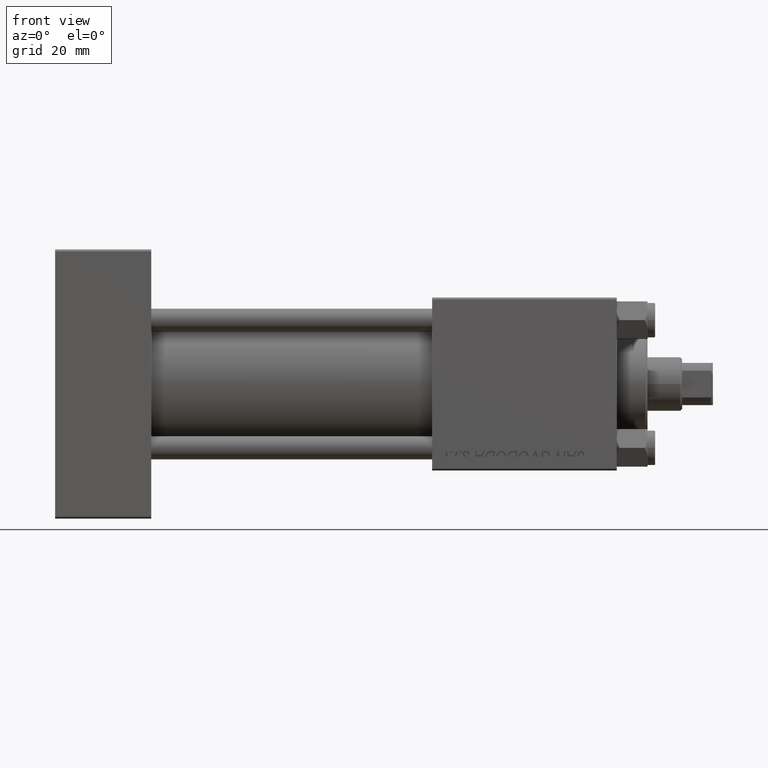
[diagram: clean part render]
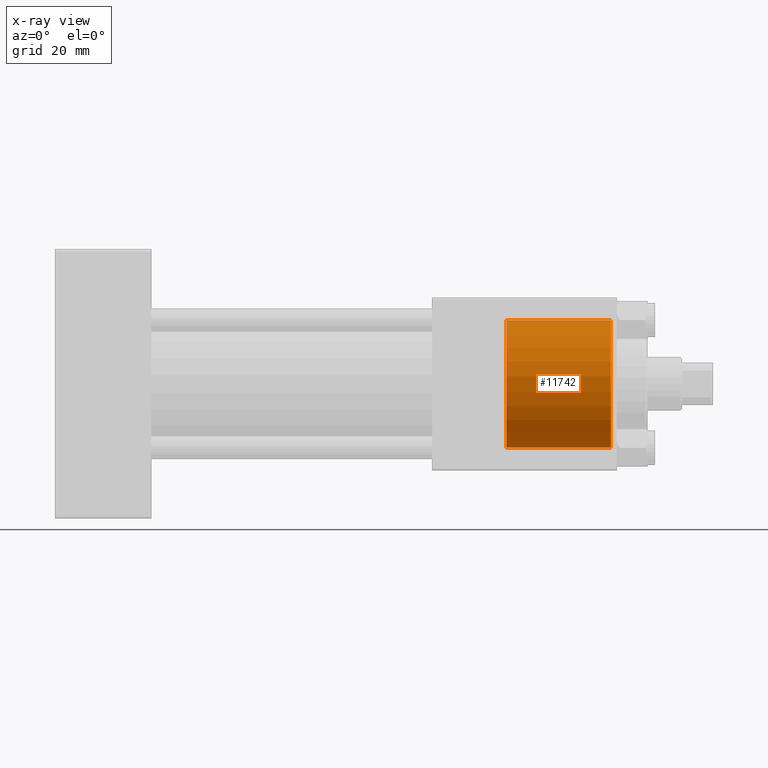
[diagram: x-ray — body ghosted, one internal face saturated and labeled with its STEP entity id]
A machine part, front view, then the same camera in x-ray: the body is ghosted and one INTERNAL B-rep face — a face not visible from any outside direction — is saturated and labeled: STEP entity #11742.
In plain terms, the highlighted cylindrical surface (partial cylindrical patch) has radius 16.5 mm, axis along (1, 0, 0).
Its self-contained STEP definition (entity closure, byte-faithful):
#403 = EDGE_CURVE ( 'NONE', #26955, #36608, #15695, .T. ) ;
#2248 = DIRECTION ( 'NONE',  ( 1.000000000000000000, 0.000000000000000000, 0.000000000000000000 ) ) ;
#3832 = CARTESIAN_POINT ( 'NONE',  ( 117.3000000000000114, 0.000000000000000000, 0.000000000000000000 ) ) ;
#5298 = VECTOR ( 'NONE', #41569, 1000.000000000000000 ) ;
#6277 = DIRECTION ( 'NONE',  ( 0.000000000000000000, 0.000000000000000000, -1.000000000000000000 ) ) ;
#7318 = VERTEX_POINT ( 'NONE', #24006 ) ;
#7359 = FACE_OUTER_BOUND ( 'NONE', #46381, .T. ) ;
#10068 = CARTESIAN_POINT ( 'NONE',  ( 117.3000000000000114, 0.000000000000000000, 0.000000000000000000 ) ) ;
#10588 = EDGE_CURVE ( 'NONE', #26955, #7318, #32340, .T. ) ;
#11742 = ADVANCED_FACE ( 'NONE', ( #7359 ), #22768, .F. ) ;
#11976 = AXIS2_PLACEMENT_3D ( 'NONE', #40176, #43722, #36127 ) ;
#14469 = EDGE_CURVE ( 'NONE', #7318, #43466, #27279, .T. ) ;
#15062 = LINE ( 'NONE', #15818, #5298 ) ;
#15695 = CIRCLE ( 'NONE', #27738, 16.50000000000000000 ) ;
#15818 = CARTESIAN_POINT ( 'NONE',  ( 117.3000000000000114, 0.000000000000000000, -16.50000000000000000 ) ) ;
#18992 = DIRECTION ( 'NONE',  ( 1.000000000000000000, -0.000000000000000000, -0.000000000000000000 ) ) ;
#19232 = ORIENTED_EDGE ( 'NONE', *, *, #14469, .T. ) ;
#20752 = DIRECTION ( 'NONE',  ( 1.000000000000000000, -0.000000000000000000, -0.000000000000000000 ) ) ;
#22768 = CYLINDRICAL_SURFACE ( 'NONE', #40220, 16.50000000000000000 ) ;
#23269 = DIRECTION ( 'NONE',  ( 0.000000000000000000, 0.000000000000000000, -1.000000000000000000 ) ) ;
#24006 = CARTESIAN_POINT ( 'NONE',  ( 144.5000000000000853, 2.020667218593133100E-15, 16.50000000000000000 ) ) ;
#26955 = VERTEX_POINT ( 'NONE', #33181 ) ;
#27279 = CIRCLE ( 'NONE', #11976, 16.50000000000000000 ) ;
#27738 = AXIS2_PLACEMENT_3D ( 'NONE', #10068, #2248, #6277 ) ;
#28544 = CARTESIAN_POINT ( 'NONE',  ( 117.3000000000000114, 2.020667218593133100E-15, 16.50000000000000000 ) ) ;
#28665 = ORIENTED_EDGE ( 'NONE', *, *, #10588, .T. ) ;
#30534 = VECTOR ( 'NONE', #20752, 1000.000000000000000 ) ;
#32340 = LINE ( 'NONE', #28544, #30534 ) ;
#33181 = CARTESIAN_POINT ( 'NONE',  ( 117.3000000000000114, 2.020667218593133100E-15, 16.50000000000000000 ) ) ;
#35264 = ORIENTED_EDGE ( 'NONE', *, *, #49444, .F. ) ;
#36127 = DIRECTION ( 'NONE',  ( 0.000000000000000000, 0.000000000000000000, 1.000000000000000000 ) ) ;
#36608 = VERTEX_POINT ( 'NONE', #49995 ) ;
#38562 = CARTESIAN_POINT ( 'NONE',  ( 144.5000000000000853, 0.000000000000000000, -16.50000000000000000 ) ) ;
#40176 = CARTESIAN_POINT ( 'NONE',  ( 144.5000000000000853, 0.000000000000000000, 0.000000000000000000 ) ) ;
#40220 = AXIS2_PLACEMENT_3D ( 'NONE', #3832, #18992, #23269 ) ;
#41569 = DIRECTION ( 'NONE',  ( 1.000000000000000000, -0.000000000000000000, -0.000000000000000000 ) ) ;
#43466 = VERTEX_POINT ( 'NONE', #38562 ) ;
#43722 = DIRECTION ( 'NONE',  ( 1.000000000000000000, 0.000000000000000000, 0.000000000000000000 ) ) ;
#46381 = EDGE_LOOP ( 'NONE', ( #47495, #28665, #19232, #35264 ) ) ;
#47495 = ORIENTED_EDGE ( 'NONE', *, *, #403, .F. ) ;
#49444 = EDGE_CURVE ( 'NONE', #36608, #43466, #15062, .T. ) ;
#49995 = CARTESIAN_POINT ( 'NONE',  ( 117.3000000000000114, 0.000000000000000000, -16.50000000000000000 ) ) ;